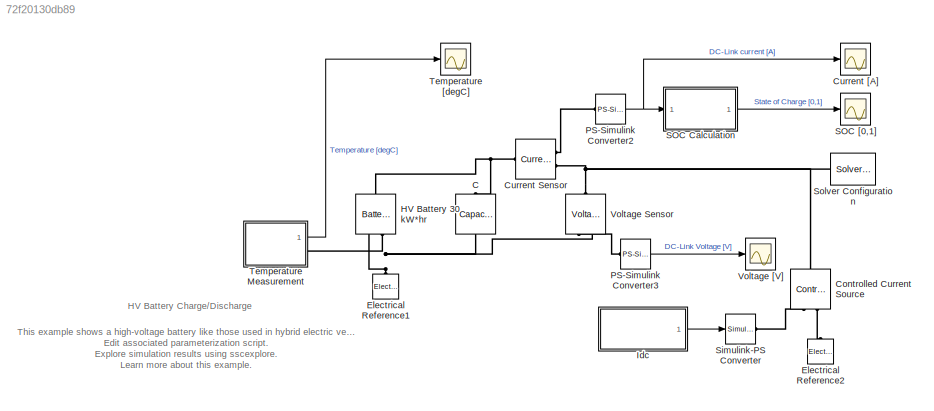
MODEL slx_72f20130db89
KIND model
CONFIG AbsTol = auto
CONFIG EnableMultiTasking = on
CONFIG FixedStep = Ts
CONFIG MaxStep = auto
CONFIG MinStep = auto
CONFIG PreLoadFcn = pe_hv_battery_charge_discharge_data;
CONFIG RelTol = 1e-3
CONFIG SampleTimeConstraint = Unconstrained
CONFIG Solver = ode1
CONFIG SolverName = ode1
CONFIG StartTime = 0.0
CONFIG StopTime = 1000
BLOCK [Reference] C  REF=fl_lib/Electrical/Electrical Elements/Capacitor
  Ports = [0, 0, 0, 0, 0, 1, 1]
  SourceBlock = fl_lib/Electrical/Electrical Elements/Capacitor
  SourceProductName = Foundation Library
  SourceType = Capacitor
BLOCK [Reference] Controlled Current Source  REF=fl_lib/Electrical/Electrical Sources/Controlled Current
Source
  Ports = [0, 0, 0, 0, 0, 1, 2]
  SourceBlock = fl_lib/Electrical/Electrical Sources/Controlled Current\nSource
  SourceProductName = Foundation Library
  SourceType = Controlled Current\nSource
BLOCK [Reference] Current Sensor  REF=fl_lib/Electrical/Electrical Sensors/Current Sensor
  Ports = [0, 0, 0, 0, 0, 1, 2]
  SourceBlock = fl_lib/Electrical/Electrical Sensors/Current Sensor
  SourceProductName = Foundation Library
  SourceType = Current Sensor
BLOCK [Scope] Current [A]
  NumInputPorts = 1
  Ports = [1]
  ScopeSpecificationString = Simulink.scopes.TimeScopeBlockCfg('CurrentConfiguration', extmgr.ConfigurationSet(extmgr.Configuration('Core','General UI',true),extmgr.Configuration('Core','Source UI',true),extmgr.Configuration('Sources','WiredSimulink',true,'DataLoggingVariableName','ScopeData1'),extmgr.Configuration('Visuals','Time Domain',true,'SerializedDisplays',{struct('MinYLimReal','-356.46443','MaxYLimReal','425.17986','...<+1465ch>
BLOCK [Reference] Electrical Reference1  REF=fl_lib/Electrical/Electrical Elements/Electrical Reference
  Ports = [0, 0, 0, 0, 0, 1]
  SourceBlock = fl_lib/Electrical/Electrical Elements/Electrical Reference
  SourceProductName = Foundation Library
  SourceType = Electrical Reference
BLOCK [Reference] Electrical Reference2  REF=fl_lib/Electrical/Electrical Elements/Electrical Reference
  Ports = [0, 0, 0, 0, 0, 1]
  SourceBlock = fl_lib/Electrical/Electrical Elements/Electrical Reference
  SourceProductName = Foundation Library
  SourceType = Electrical Reference
BLOCK [Reference] HV Battery 30 kW*hr  REF=pe_lib/Sources/Battery
  Ports = [0, 0, 0, 0, 0, 1, 2]
  SourceBlock = pe_lib/Sources/Battery
  SourceProductBaseCode = PS
  SourceProductName = Simscape Power Systems
  SourceType = Battery
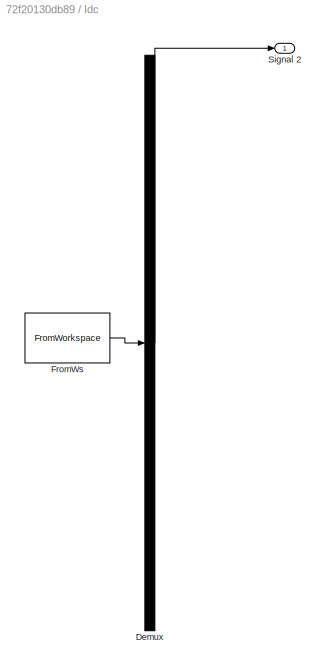
BLOCK [SubSystem] Idc
  ClipboardFcn = sigbuilder_block('clipboard');
  CloseFcn = sigbuilder_block('close');
  ContinueFcn = sigbuilder_block('continue');
  CopyFcn = sigbuilder_block('copy');
  DeleteFcn = sigbuilder_block('delete');
  LoadFcn = sigbuilder_block('load',[0 24 1024.5 494.25 ]);
  MaskHideContents = on
  ModelCloseFcn = sigbuilder_block('modelClose');
  NameChangeFcn = sigbuilder_block('namechange');
  OpenFcn = sigbuilder_block('open',[1714.5 266.25 464.25 269.25 ]);
  PauseFcn = sigbuilder_block('pause');
  Ports = [0, 1]
  PreSaveFcn = sigbuilder_block('preSave');
  RequestExecContextInheritance = off
  StartFcn = sigbuilder_block('start');
  StopFcn = sigbuilder_block('stop');
  Tag = STV Subsys
  Variant = off
BLOCK [Demux] Idc/Demux
  Outputs = 1
  Ports = [1, 1]
  Tag = STV Demux
BLOCK [FromWorkspace] Idc/FromWs
  SampleTime = 0
  Tag = STV FromWs
  VariableName = tuvar
  ZeroCross = on
BLOCK [Outport] Idc/Signal 2
  IconDisplay = Port number
  Tag = STV Outport
BLOCK [Reference] PS-Simulink Converter2  REF=nesl_utility/PS-Simulink
Converter
  Ports = [0, 1, 0, 0, 0, 1]
  SourceBlock = nesl_utility/PS-Simulink\nConverter
  SourceProductBaseCode = SS
  SourceProductName = Simscape
  SourceType = PS-Simulink\nConverter
BLOCK [Reference] PS-Simulink Converter3  REF=nesl_utility/PS-Simulink
Converter
  Ports = [0, 1, 0, 0, 0, 1]
  SourceBlock = nesl_utility/PS-Simulink\nConverter
  SourceProductBaseCode = SS
  SourceProductName = Simscape
  SourceType = PS-Simulink\nConverter
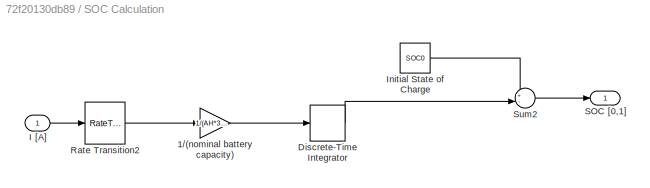
BLOCK [SubSystem] SOC Calculation
  Ports = [1, 1]
  RequestExecContextInheritance = off
  Variant = off
BLOCK [Gain] SOC Calculation/1//(nominal battery capacity)
  Gain = 1/(AH*3600)
  OutDataTypeStr = Inherit: Inherit via internal rule
  ParamDataTypeStr = Inherit: Inherit via internal rule
  SaturateOnIntegerOverflow = off
BLOCK [DiscreteIntegrator] SOC Calculation/Discrete-Time Integrator
  ICPrevOutput = DiscIntNeverNeededParam
  ICPrevScaledInput = DiscIntNeverNeededParam
  InitialConditionSetting = State (most efficient)
  Ports = [1, 1]
  SampleTime = -1
BLOCK [Inport] SOC Calculation/I [A]
  IconDisplay = Port number
BLOCK [Constant] SOC Calculation/Initial State of Charge
  Value = SOC0
BLOCK [RateTransition] SOC Calculation/Rate Transition2
BLOCK [Outport] SOC Calculation/SOC [0,1]
  IconDisplay = Port number
BLOCK [Sum] SOC Calculation/Sum2
  IconShape = round
  InputSameDT = off
  Inputs = +-
  OutDataTypeStr = Inherit: Inherit via internal rule
  Ports = [2, 1]
  SaturateOnIntegerOverflow = off
BLOCK [Scope] SOC [0,1]
  NumInputPorts = 1
  Ports = [1]
  ScopeSpecificationString = Simulink.scopes.TimeScopeBlockCfg('CurrentConfiguration', extmgr.ConfigurationSet(extmgr.Configuration('Core','General UI',true),extmgr.Configuration('Core','Source UI',true),extmgr.Configuration('Sources','WiredSimulink',true,'DataLoggingVariableName','ScopeData5'),extmgr.Configuration('Visuals','Time Domain',true,'SerializedDisplays',{struct('MinYLimReal','0.40439','MaxYLimReal','0.73285','YLabe...<+1452ch>
BLOCK [Reference] Simulink-PS Converter  REF=nesl_utility/Simulink-PS
Converter
  Ports = [1, 0, 0, 0, 0, 0, 1]
  SourceBlock = nesl_utility/Simulink-PS\nConverter
  SourceProductBaseCode = SS
  SourceProductName = Simscape
  SourceType = Simulink-PS\nConverter
BLOCK [Reference] Solver Configuration  REF=nesl_utility/Solver
Configuration
  Ports = [0, 0, 0, 0, 0, 0, 1]
  SourceBlock = nesl_utility/Solver\nConfiguration
  SourceProductBaseCode = SS
  SourceProductName = Simscape
  SourceType = Solver\nConfiguration
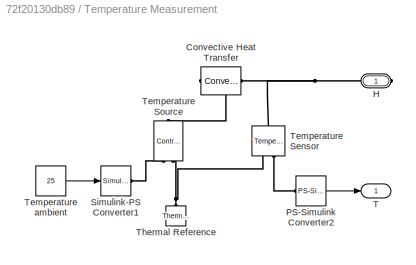
BLOCK [SubSystem] Temperature Measurement
  Ports = [0, 1, 0, 0, 0, 0, 1]
  RequestExecContextInheritance = off
  Variant = off
BLOCK [Reference] Temperature Measurement/Convective Heat Transfer  REF=fl_lib/Thermal/Thermal Elements/Convective Heat
Transfer
  Ports = [0, 0, 0, 0, 0, 1, 1]
  SourceBlock = fl_lib/Thermal/Thermal Elements/Convective Heat\nTransfer
  SourceProductName = Foundation Library
  SourceType = Convective Heat\nTransfer
BLOCK [PMIOPort] Temperature Measurement/H
  Port = 1
  Side = Right
BLOCK [Reference] Temperature Measurement/PS-Simulink Converter2  REF=nesl_utility/PS-Simulink
Converter
  Ports = [0, 1, 0, 0, 0, 1]
  SourceBlock = nesl_utility/PS-Simulink\nConverter
  SourceProductBaseCode = SS
  SourceProductName = Simscape
  SourceType = PS-Simulink\nConverter
BLOCK [Reference] Temperature Measurement/Simulink-PS Converter1  REF=nesl_utility/Simulink-PS
Converter
  Ports = [1, 0, 0, 0, 0, 0, 1]
  SourceBlock = nesl_utility/Simulink-PS\nConverter
  SourceProductBaseCode = SS
  SourceProductName = Simscape
  SourceType = Simulink-PS\nConverter
BLOCK [Outport] Temperature Measurement/T
  IconDisplay = Port number
BLOCK [Reference] Temperature Measurement/Temperature Sensor  REF=fl_lib/Thermal/Thermal Sensors/Temperature Sensor
  Ports = [0, 0, 0, 0, 0, 1, 2]
  SourceBlock = fl_lib/Thermal/Thermal Sensors/Temperature Sensor
  SourceProductName = Foundation Library
  SourceType = Temperature Sensor
BLOCK [Reference] Temperature Measurement/Temperature Source  REF=fl_lib/Thermal/Thermal Sources/Controlled
Temperature Source
  Ports = [0, 0, 0, 0, 0, 1, 2]
  SourceBlock = fl_lib/Thermal/Thermal Sources/Controlled\nTemperature Source
  SourceProductName = Foundation Library
  SourceType = Controlled\nTemperature Source
BLOCK [Constant] Temperature Measurement/Temperature ambient
  Value = 25
BLOCK [Reference] Temperature Measurement/Thermal Reference  REF=fl_lib/Thermal/Thermal Elements/Thermal Reference
  Ports = [0, 0, 0, 0, 0, 1]
  SourceBlock = fl_lib/Thermal/Thermal Elements/Thermal Reference
  SourceProductName = Foundation Library
  SourceType = Thermal Reference
BLOCK [Scope] Temperature [degC]
  NumInputPorts = 1
  Ports = [1]
  ScopeSpecificationString = Simulink.scopes.TimeScopeBlockCfg('CurrentConfiguration', extmgr.ConfigurationSet(extmgr.Configuration('Core','General UI',true),extmgr.Configuration('Core','Source UI',true),extmgr.Configuration('Sources','WiredSimulink',true,'DataLoggingVariableName','ScopeData1'),extmgr.Configuration('Visuals','Time Domain',true,'SerializedDisplays',{struct('MinYLimReal','24.96594','MaxYLimReal','25.30656','YLa...<+1457ch>
BLOCK [Reference] Voltage Sensor  REF=fl_lib/Electrical/Electrical Sensors/Voltage Sensor
  Ports = [0, 0, 0, 0, 0, 1, 2]
  SourceBlock = fl_lib/Electrical/Electrical Sensors/Voltage Sensor
  SourceProductName = Foundation Library
  SourceType = Voltage Sensor
BLOCK [Scope] Voltage [V]
  NumInputPorts = 1
  Ports = [1]
  ScopeSpecificationString = Simulink.scopes.TimeScopeBlockCfg('CurrentConfiguration', extmgr.ConfigurationSet(extmgr.Configuration('Core','General UI',true),extmgr.Configuration('Core','Source UI',true),extmgr.Configuration('Sources','WiredSimulink',true,'DataLoggingVariableName','ScopeData4'),extmgr.Configuration('Visuals','Time Domain',true,'SerializedDisplays',{struct('MinYLimReal','259.39536','MaxYLimReal','289.36011','Y...<+1465ch>
ANNOTATION (root): This example shows a high-voltage battery like those used in hybrid electric vehicles. The model uses a realistic DC-link current profile, which originates from a dynamic driving cycle. The total simulation time is 3600 seconds. Edit associated parameterization script. Explore simulation results using sscexplore . Learn more about this example.
ANNOTATION (root): HV Battery Charge/Discharge
LINE Idc:1 -> Simulink-PS Converter:1
NET PS-Simulink Converter2:1 -> Current [A]:1, SOC Calculation:1
LINE PS-Simulink Converter3:1 -> Voltage [V]:1
LINE SOC Calculation/1//(nominal battery capacity):1 -> SOC Calculation/Discrete-Time Integrator:1
LINE SOC Calculation/Discrete-Time Integrator:1 -> SOC Calculation/Sum2:2
LINE SOC Calculation/I [A]:1 -> SOC Calculation/Rate Transition2:1
LINE SOC Calculation/Initial State of Charge:1 -> SOC Calculation/Sum2:1
LINE SOC Calculation/Rate Transition2:1 -> SOC Calculation/1//(nominal battery capacity):1
LINE SOC Calculation/Sum2:1 -> SOC Calculation/SOC [0,1]:1
LINE SOC Calculation:1 -> SOC [0,1]:1
LINE Temperature Measurement/PS-Simulink Converter2:1 -> Temperature Measurement/T:1
LINE Temperature Measurement/Temperature ambient:1 -> Temperature Measurement/Simulink-PS Converter1:1
LINE Temperature Measurement:1 -> Temperature [degC]:1
PNET net1: C:LConn1 -- Current Sensor:LConn1 -- HV Battery 30 kW*hr:LConn1
PNET net2: C:RConn1 -- Electrical Reference1:LConn1 -- HV Battery 30 kW*hr:RConn1 -- Voltage Sensor:RConn2
PNET net3: Controlled Current Source:LConn1 -- Current Sensor:RConn2 -- Solver Configuration:RConn1 -- Voltage Sensor:LConn1
PLINE Controlled Current Source:RConn1 -- Simulink-PS Converter:RConn1
PLINE Controlled Current Source:RConn2 -- Electrical Reference2:LConn1
PLINE Current Sensor:RConn1 -- PS-Simulink Converter2:LConn1
PLINE HV Battery 30 kW*hr:RConn2 -- Temperature Measurement:RConn1
PLINE PS-Simulink Converter3:LConn1 -- Voltage Sensor:RConn1
PNET net4: Temperature Measurement/Convective Heat Transfer:LConn1 -- Temperature Measurement/H:RConn1 -- Temperature Measurement/Temperature Sensor:LConn1
PLINE Temperature Measurement/Convective Heat Transfer:RConn1 -- Temperature Measurement/Temperature Source:LConn1
PLINE Temperature Measurement/PS-Simulink Converter2:LConn1 -- Temperature Measurement/Temperature Sensor:RConn2
PLINE Temperature Measurement/Simulink-PS Converter1:RConn1 -- Temperature Measurement/Temperature Source:RConn1
PNET net5: Temperature Measurement/Temperature Sensor:RConn1 -- Temperature Measurement/Temperature Source:RConn2 -- Temperature Measurement/Thermal Reference:LConn1
note: NET lines group one-source signal fan-out (src -> all destinations, sorted); 1:1 wires keep LINE; PNET lines group multi-terminal physical nets as a canonical sorted terminal list (undirected conserving connections); 2-terminal nets keep the pairwise PLINE form
